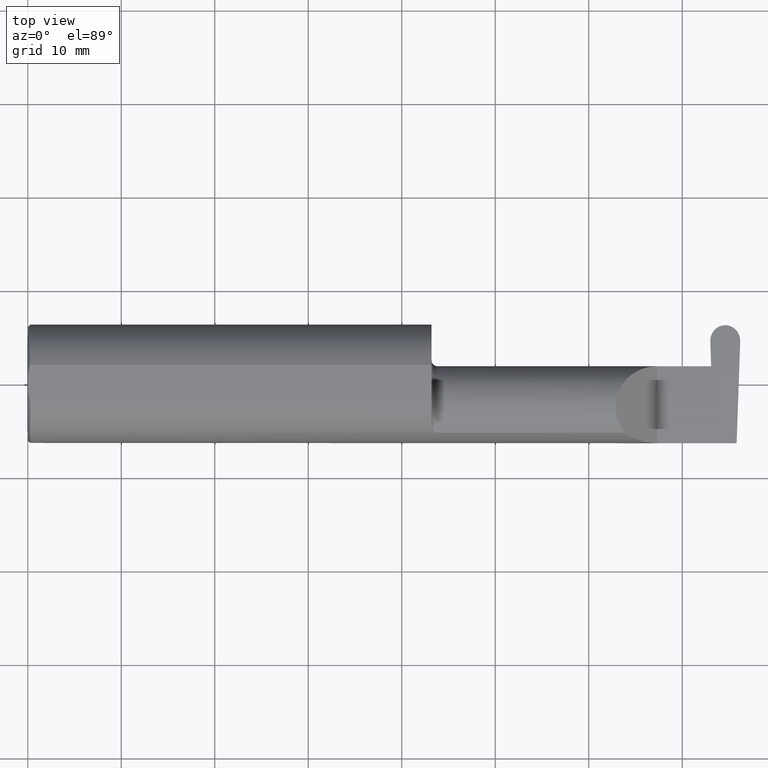
[diagram: clean part render]
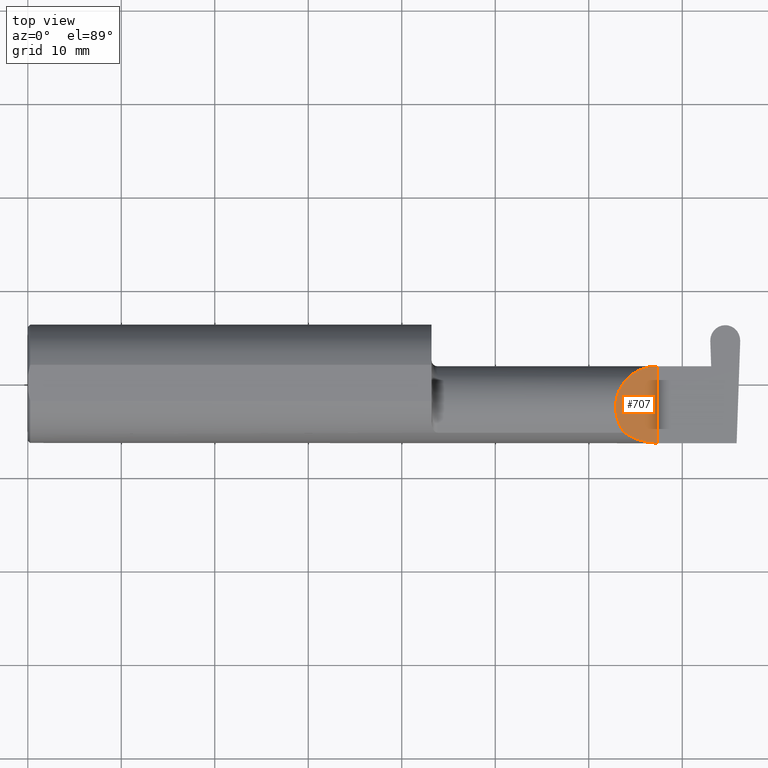
[diagram: same view with one face highlighted and labeled with its STEP entity id]
A machine part, top view. The second image highlights one B-rep face of the part: STEP entity #707.
In plain terms, the highlighted planar face has unit normal (-0.7071, 0, -0.7071).
Its self-contained STEP definition (entity closure, byte-faithful):
#66 = CARTESIAN_POINT ( 'NONE',  ( 2.650000000000000355, -0.2498499999999999610, 4.286263797015729199E-17 ) ) ;
#78 =( BOUNDED_CURVE ( )  B_SPLINE_CURVE ( 3, ( #456, #669, #695, #153 ),
 .UNSPECIFIED., .F., .T. ) 
 B_SPLINE_CURVE_WITH_KNOTS ( ( 4, 4 ),
 ( 4.712388980384689674, 5.298966915116347209 ),
 .UNSPECIFIED. ) 
 CURVE ( )  GEOMETRIC_REPRESENTATION_ITEM ( )  RATIONAL_B_SPLINE_CURVE ( ( 1.000000000000000000, 0.9715321379117538569, 0.9715321379117538569, 1.000000000000000000 ) ) 
 REPRESENTATION_ITEM ( '' )  );
#97 = EDGE_CURVE ( 'NONE', #117, #650, #492, .T. ) ;
#117 = VERTEX_POINT ( 'NONE', #630 ) ;
#142 = CARTESIAN_POINT ( 'NONE',  ( 2.511704467739032332, -0.2080850024789289432, 0.1382955322609668858 ) ) ;
#153 = CARTESIAN_POINT ( 'NONE',  ( 2.511704467739032332, -0.2080850024789289432, 0.1382955322609668858 ) ) ;
#168 = DIRECTION ( 'NONE',  ( -0.7071067811865511255, 0.000000000000000000, 0.7071067811865439090 ) ) ;
#190 = VERTEX_POINT ( 'NONE', #66 ) ;
#209 = CARTESIAN_POINT ( 'NONE',  ( 2.650000000000000355, -0.2500000000000000555, 4.286263797015729199E-17 ) ) ;
#228 = CARTESIAN_POINT ( 'NONE',  ( 2.650000000000000355, -0.2500000000000000555, 4.286263797015729199E-17 ) ) ;
#244 = AXIS2_PLACEMENT_3D ( 'NONE', #209, #498, #168 ) ;
#250 = CARTESIAN_POINT ( 'NONE',  ( 2.650000000000000355, 0.07414999999999997982, 1.592040838891556877E-16 ) ) ;
#286 = EDGE_LOOP ( 'NONE', ( #694, #682, #374 ) ) ;
#317 = EDGE_CURVE ( 'NONE', #190, #650, #339, .T. ) ;
#338 = VECTOR ( 'NONE', #618, 39.37007874015748143 ) ;
#339 = LINE ( 'NONE', #228, #338 ) ;
#359 = CARTESIAN_POINT ( 'NONE',  ( 2.482823929317965028, 0.07414999999999999369, 0.1671760706820338838 ) ) ;
#374 = ORIENTED_EDGE ( 'NONE', *, *, #317, .T. ) ;
#439 = FACE_OUTER_BOUND ( 'NONE', #286, .T. ) ;
#448 = EDGE_CURVE ( 'NONE', #190, #117, #78, .T. ) ;
#456 = CARTESIAN_POINT ( 'NONE',  ( 2.650000000000000355, -0.2498499999999999610, 4.286263797015729199E-17 ) ) ;
#492 =( BOUNDED_CURVE ( )  B_SPLINE_CURVE ( 3, ( #142, #533, #359, #250 ),
 .UNSPECIFIED., .F., .F. ) 
 B_SPLINE_CURVE_WITH_KNOTS ( ( 4, 4 ),
 ( 5.623622464215681127, 7.853981633974482790 ),
 .UNSPECIFIED. ) 
 CURVE ( )  GEOMETRIC_REPRESENTATION_ITEM ( )  RATIONAL_B_SPLINE_CURVE ( ( 1.000000000000000000, 0.6266774836123996106, 0.6266774836123996106, 1.000000000000000000 ) ) 
 REPRESENTATION_ITEM ( '' )  );
#498 = DIRECTION ( 'NONE',  ( -0.7071067811865439090, 0.000000000000000000, -0.7071067811865511255 ) ) ;
#533 = CARTESIAN_POINT ( 'NONE',  ( 2.409263745716142768, -0.07597241004310682777, 0.2407362542838554220 ) ) ;
#537 = CARTESIAN_POINT ( 'NONE',  ( 2.650000000000000355, 0.07414999999999997982, 1.592040838891556877E-16 ) ) ;
#618 = DIRECTION ( 'NONE',  ( -0.000000000000000000, 1.000000000000000000, -0.000000000000000000 ) ) ;
#630 = CARTESIAN_POINT ( 'NONE',  ( 2.511704467739032332, -0.2080850024789289432, 0.1382955322609668858 ) ) ;
#650 = VERTEX_POINT ( 'NONE', #537 ) ;
#655 = PLANE ( 'NONE',  #244 ) ;
#669 = CARTESIAN_POINT ( 'NONE',  ( 2.600434159100402987, -0.2498499999999999610, 0.04956584089959698708 ) ) ;
#682 = ORIENTED_EDGE ( 'NONE', *, *, #448, .F. ) ;
#694 = ORIENTED_EDGE ( 'NONE', *, *, #97, .F. ) ;
#695 = CARTESIAN_POINT ( 'NONE',  ( 2.552984868485332015, -0.2355204011147991883, 0.09701513151466749363 ) ) ;
#707 = ADVANCED_FACE ( 'NONE', ( #439 ), #655, .F. ) ;